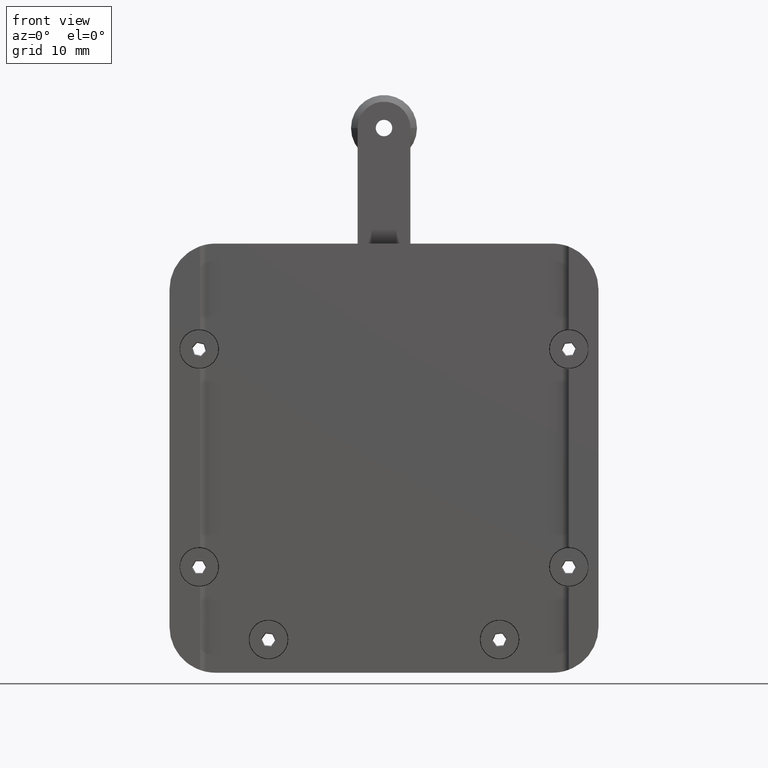
[diagram: clean part render]
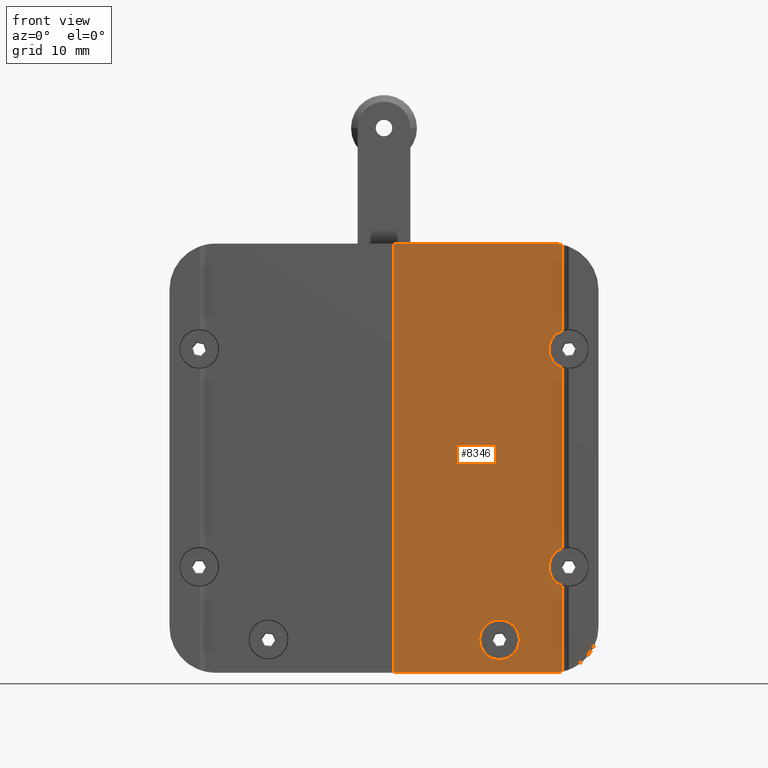
[diagram: same view with one face highlighted and labeled with its STEP entity id]
A machine part, front view. The second image highlights one B-rep face of the part: STEP entity #8346.
In plain terms, the highlighted planar face has unit normal (0, -1, 0).
Its self-contained STEP definition (entity closure, byte-faithful):
#9 = ORIENTED_EDGE ( 'NONE', *, *, #10054, .T. ) ;
#51 = DIRECTION ( 'NONE',  ( 7.919758056827704300E-019, -3.252606517456511900E-019, -1.000000000000000000 ) ) ;
#396 = LINE ( 'NONE', #10295, #9112 ) ;
#495 = DIRECTION ( 'NONE',  ( 1.734723475976807100E-017, -1.000000000000000000, -4.336808689942017700E-019 ) ) ;
#606 = EDGE_CURVE ( 'NONE', #7561, #5234, #5158, .T. ) ;
#694 = AXIS2_PLACEMENT_3D ( 'NONE', #5907, #829, #6736 ) ;
#713 = ORIENTED_EDGE ( 'NONE', *, *, #5022, .T. ) ;
#814 = EDGE_CURVE ( 'NONE', #6613, #3431, #5952, .T. ) ;
#829 = DIRECTION ( 'NONE',  ( 1.734723475976807100E-017, -1.000000000000000000, -4.336808689942017700E-019 ) ) ;
#837 = CARTESIAN_POINT ( 'NONE',  ( 27.00000000000002500, -2.500000000000005300, -1.084202172485504400E-016 ) ) ;
#937 = CARTESIAN_POINT ( 'NONE',  ( 27.00000000000002500, -2.500000000000005300, -1.084202172485504400E-016 ) ) ;
#967 = ORIENTED_EDGE ( 'NONE', *, *, #2783, .F. ) ;
#990 = ORIENTED_EDGE ( 'NONE', *, *, #2802, .T. ) ;
#1106 = VERTEX_POINT ( 'NONE', #2833 ) ;
#1175 = EDGE_LOOP ( 'NONE', ( #5070, #2020, #3300, #990, #9, #7047, #3784, #713, #10634, #1650, #7136, #967 ) ) ;
#1271 = EDGE_CURVE ( 'NONE', #3431, #2280, #10110, .T. ) ;
#1304 = LINE ( 'NONE', #9332, #7761 ) ;
#1430 = CARTESIAN_POINT ( 'NONE',  ( 27.00000000000002500, -2.500000000000003600, -32.33739716558870500 ) ) ;
#1650 = ORIENTED_EDGE ( 'NONE', *, *, #2267, .F. ) ;
#1693 = CARTESIAN_POINT ( 'NONE',  ( 27.00000000000002100, -2.500000000000004400, 19.32842712474616000 ) ) ;
#1915 = CARTESIAN_POINT ( 'NONE',  ( 28.00000000000001800, -2.500000000000003100, 16.49999999999995700 ) ) ;
#1999 = VECTOR ( 'NONE', #51, 1000.000000000000000 ) ;
#2020 = ORIENTED_EDGE ( 'NONE', *, *, #814, .T. ) ;
#2028 = CARTESIAN_POINT ( 'NONE',  ( 27.00000000000002500, -2.500000000000005300, -1.084202172485504400E-016 ) ) ;
#2198 = CARTESIAN_POINT ( 'NONE',  ( 1.499999999999966700, -2.500000000000004400, 32.49999999999998600 ) ) ;
#2219 = VERTEX_POINT ( 'NONE', #2198 ) ;
#2267 = EDGE_CURVE ( 'NONE', #7561, #10669, #8430, .T. ) ;
#2280 = VERTEX_POINT ( 'NONE', #7698 ) ;
#2366 = EDGE_CURVE ( 'NONE', #10007, #1106, #396, .T. ) ;
#2389 = CARTESIAN_POINT ( 'NONE',  ( -5.204170427930421300E-014, -2.500000000000003600, 5.421010862427522200E-017 ) ) ;
#2567 = VERTEX_POINT ( 'NONE', #5728 ) ;
#2644 = CARTESIAN_POINT ( 'NONE',  ( 28.00000000000002100, -2.500000000000003100, -16.49999999999995700 ) ) ;
#2715 = CARTESIAN_POINT ( 'NONE',  ( 28.00000000000002100, -2.500000000000003100, -16.49999999999995700 ) ) ;
#2763 = DIRECTION ( 'NONE',  ( 0.0000000000000000000, 0.0000000000000000000, -1.000000000000000000 ) ) ;
#2783 = EDGE_CURVE ( 'NONE', #2567, #5234, #3557, .T. ) ;
#2793 = CIRCLE ( 'NONE', #9399, 2.999999999999933400 ) ;
#2802 = EDGE_CURVE ( 'NONE', #2280, #2219, #1304, .T. ) ;
#2833 = CARTESIAN_POINT ( 'NONE',  ( 25.50000000000000700, -2.500000000000003100, -32.49999999999999300 ) ) ;
#2856 = DIRECTION ( 'NONE',  ( -1.000000000000000000, 1.734723475976803700E-017, 9.029371217730824300E-019 ) ) ;
#2941 = CARTESIAN_POINT ( 'NONE',  ( 17.50000000000000000, -2.500000000000003600, -27.49999999999995700 ) ) ;
#2956 = AXIS2_PLACEMENT_3D ( 'NONE', #10708, #495, #6411 ) ;
#2976 = AXIS2_PLACEMENT_3D ( 'NONE', #3721, #9586, #4550 ) ;
#3255 = DIRECTION ( 'NONE',  ( 7.919758056827704300E-019, -3.252606517456511900E-019, -1.000000000000000000 ) ) ;
#3300 = ORIENTED_EDGE ( 'NONE', *, *, #1271, .T. ) ;
#3431 = VERTEX_POINT ( 'NONE', #4901 ) ;
#3437 = AXIS2_PLACEMENT_3D ( 'NONE', #2389, #8286, #3255 ) ;
#3460 = CARTESIAN_POINT ( 'NONE',  ( 27.00000000000001400, -2.500000000000002700, -13.67157287525376400 ) ) ;
#3509 = DIRECTION ( 'NONE',  ( 0.0000000000000000000, 0.0000000000000000000, -1.000000000000000000 ) ) ;
#3557 = CIRCLE ( 'NONE', #2976, 3.000000000000006200 ) ;
#3579 = DIRECTION ( 'NONE',  ( 0.0000000000000000000, 0.0000000000000000000, -1.000000000000000000 ) ) ;
#3721 = CARTESIAN_POINT ( 'NONE',  ( 28.00000000000001800, -2.500000000000003100, 16.49999999999995700 ) ) ;
#3784 = ORIENTED_EDGE ( 'NONE', *, *, #9984, .T. ) ;
#3808 = DIRECTION ( 'NONE',  ( 0.0000000000000000000, 0.0000000000000000000, -1.000000000000000000 ) ) ;
#4068 = LINE ( 'NONE', #837, #8522 ) ;
#4302 = CIRCLE ( 'NONE', #6987, 3.000000000000006200 ) ;
#4304 = ORIENTED_EDGE ( 'NONE', *, *, #7311, .F. ) ;
#4454 = FACE_BOUND ( 'NONE', #7974, .T. ) ;
#4550 = DIRECTION ( 'NONE',  ( 0.0000000000000000000, 0.0000000000000000000, -1.000000000000000000 ) ) ;
#4602 = ORIENTED_EDGE ( 'NONE', *, *, #5560, .F. ) ;
#4618 = VECTOR ( 'NONE', #7935, 1000.000000000000000 ) ;
#4811 = VERTEX_POINT ( 'NONE', #1430 ) ;
#4853 = DIRECTION ( 'NONE',  ( 1.734723475976807100E-017, -1.000000000000000000, -4.336808689942017700E-019 ) ) ;
#4901 = CARTESIAN_POINT ( 'NONE',  ( 27.00000000000002500, -2.500000000000004000, 32.33739716558865500 ) ) ;
#5022 = EDGE_CURVE ( 'NONE', #4811, #5264, #4068, .T. ) ;
#5070 = ORIENTED_EDGE ( 'NONE', *, *, #8068, .F. ) ;
#5095 = AXIS2_PLACEMENT_3D ( 'NONE', #2941, #8833, #3808 ) ;
#5158 = LINE ( 'NONE', #937, #4618 ) ;
#5234 = VERTEX_POINT ( 'NONE', #6713 ) ;
#5264 = VERTEX_POINT ( 'NONE', #9344 ) ;
#5333 = EDGE_CURVE ( 'NONE', #10669, #5264, #4302, .T. ) ;
#5560 = EDGE_CURVE ( 'NONE', #9941, #9365, #8913, .T. ) ;
#5728 = CARTESIAN_POINT ( 'NONE',  ( 25.00000000000001100, -2.500000000000003100, 16.49999999999994700 ) ) ;
#5907 = CARTESIAN_POINT ( 'NONE',  ( 25.50000000000001400, -2.500000000000005300, -25.50000000000001100 ) ) ;
#5935 = CIRCLE ( 'NONE', #9480, 3.000000000000006200 ) ;
#5952 = LINE ( 'NONE', #2028, #9885 ) ;
#6411 = DIRECTION ( 'NONE',  ( 0.0000000000000000000, 0.0000000000000000000, -1.000000000000000000 ) ) ;
#6613 = VERTEX_POINT ( 'NONE', #1693 ) ;
#6713 = CARTESIAN_POINT ( 'NONE',  ( 27.00000000000001400, -2.500000000000002700, 13.67157287525376800 ) ) ;
#6736 = DIRECTION ( 'NONE',  ( 0.0000000000000000000, 0.0000000000000000000, -1.000000000000000000 ) ) ;
#6842 = CARTESIAN_POINT ( 'NONE',  ( 1.499999999999970000, -2.500000000000003100, 33.00000000000001400 ) ) ;
#6987 = AXIS2_PLACEMENT_3D ( 'NONE', #2715, #8603, #3579 ) ;
#7047 = ORIENTED_EDGE ( 'NONE', *, *, #2366, .T. ) ;
#7136 = ORIENTED_EDGE ( 'NONE', *, *, #606, .T. ) ;
#7304 = CARTESIAN_POINT ( 'NONE',  ( 25.00000000000001400, -2.500000000000003100, -16.49999999999996100 ) ) ;
#7311 = EDGE_CURVE ( 'NONE', #9365, #9941, #2793, .T. ) ;
#7435 = CARTESIAN_POINT ( 'NONE',  ( 14.50000000000006800, -2.500000000000003600, -27.49999999999998200 ) ) ;
#7561 = VERTEX_POINT ( 'NONE', #3460 ) ;
#7698 = CARTESIAN_POINT ( 'NONE',  ( 25.50000000000001400, -2.500000000000004000, 32.49999999999999300 ) ) ;
#7761 = VECTOR ( 'NONE', #2856, 1000.000000000000000 ) ;
#7811 = DIRECTION ( 'NONE',  ( 1.734723475976807100E-017, -1.000000000000000000, -4.336808689942017700E-019 ) ) ;
#7935 = DIRECTION ( 'NONE',  ( -7.919758056827704300E-019, 3.252606517456511900E-019, 1.000000000000000000 ) ) ;
#7974 = EDGE_LOOP ( 'NONE', ( #4304, #4602 ) ) ;
#8068 = EDGE_CURVE ( 'NONE', #6613, #2567, #5935, .T. ) ;
#8286 = DIRECTION ( 'NONE',  ( 1.734723475976806800E-017, -1.000000000000000000, 3.252606517456511900E-019 ) ) ;
#8322 = AXIS2_PLACEMENT_3D ( 'NONE', #2644, #8528, #3509 ) ;
#8346 = ADVANCED_FACE ( 'NONE', ( #4454, #10896 ), #9108, .T. ) ;
#8430 = CIRCLE ( 'NONE', #8322, 3.000000000000006200 ) ;
#8444 = CARTESIAN_POINT ( 'NONE',  ( 1.499999999999966700, -2.500000000000004400, -32.50000000000000000 ) ) ;
#8457 = LINE ( 'NONE', #6842, #1999 ) ;
#8522 = VECTOR ( 'NONE', #10911, 1000.000000000000000 ) ;
#8528 = DIRECTION ( 'NONE',  ( 1.734723475976807100E-017, -1.000000000000000000, -4.336808689942017700E-019 ) ) ;
#8603 = DIRECTION ( 'NONE',  ( 1.734723475976807100E-017, -1.000000000000000000, -4.336808689942017700E-019 ) ) ;
#8833 = DIRECTION ( 'NONE',  ( 1.734723475976807100E-017, -1.000000000000000000, -4.336808689942017700E-019 ) ) ;
#8913 = CIRCLE ( 'NONE', #5095, 2.999999999999933400 ) ;
#9108 = PLANE ( 'NONE',  #3437 ) ;
#9112 = VECTOR ( 'NONE', #10326, 1000.000000000000000 ) ;
#9332 = CARTESIAN_POINT ( 'NONE',  ( 28.00000000000001100, -2.500000000000004000, 32.50000000000000000 ) ) ;
#9344 = CARTESIAN_POINT ( 'NONE',  ( 27.00000000000001800, -2.500000000000004900, -19.32842712474614900 ) ) ;
#9365 = VERTEX_POINT ( 'NONE', #10181 ) ;
#9399 = AXIS2_PLACEMENT_3D ( 'NONE', #9899, #4853, #10722 ) ;
#9480 = AXIS2_PLACEMENT_3D ( 'NONE', #1915, #7811, #2763 ) ;
#9586 = DIRECTION ( 'NONE',  ( 1.734723475976807100E-017, -1.000000000000000000, -4.336808689942017700E-019 ) ) ;
#9885 = VECTOR ( 'NONE', #10453, 1000.000000000000000 ) ;
#9899 = CARTESIAN_POINT ( 'NONE',  ( 17.50000000000000000, -2.500000000000003600, -27.49999999999995700 ) ) ;
#9941 = VERTEX_POINT ( 'NONE', #7435 ) ;
#9984 = EDGE_CURVE ( 'NONE', #1106, #4811, #10829, .T. ) ;
#10007 = VERTEX_POINT ( 'NONE', #8444 ) ;
#10054 = EDGE_CURVE ( 'NONE', #2219, #10007, #8457, .T. ) ;
#10110 = CIRCLE ( 'NONE', #2956, 7.000000000000002700 ) ;
#10181 = CARTESIAN_POINT ( 'NONE',  ( 20.49999999999993600, -2.500000000000003600, -27.49999999999998200 ) ) ;
#10295 = CARTESIAN_POINT ( 'NONE',  ( 28.00000000000002500, -2.500000000000004400, -32.50000000000001400 ) ) ;
#10326 = DIRECTION ( 'NONE',  ( 1.000000000000000000, -1.734723475976803700E-017, -9.029371217730824300E-019 ) ) ;
#10453 = DIRECTION ( 'NONE',  ( -7.919758056827704300E-019, 3.252606517456511900E-019, 1.000000000000000000 ) ) ;
#10634 = ORIENTED_EDGE ( 'NONE', *, *, #5333, .F. ) ;
#10669 = VERTEX_POINT ( 'NONE', #7304 ) ;
#10708 = CARTESIAN_POINT ( 'NONE',  ( 25.50000000000001800, -2.500000000000003600, 25.49999999999999600 ) ) ;
#10722 = DIRECTION ( 'NONE',  ( 0.0000000000000000000, 0.0000000000000000000, -1.000000000000000000 ) ) ;
#10829 = CIRCLE ( 'NONE', #694, 7.000000000000002700 ) ;
#10896 = FACE_OUTER_BOUND ( 'NONE', #1175, .T. ) ;
#10911 = DIRECTION ( 'NONE',  ( -7.919758056827704300E-019, 3.252606517456511900E-019, 1.000000000000000000 ) ) ;